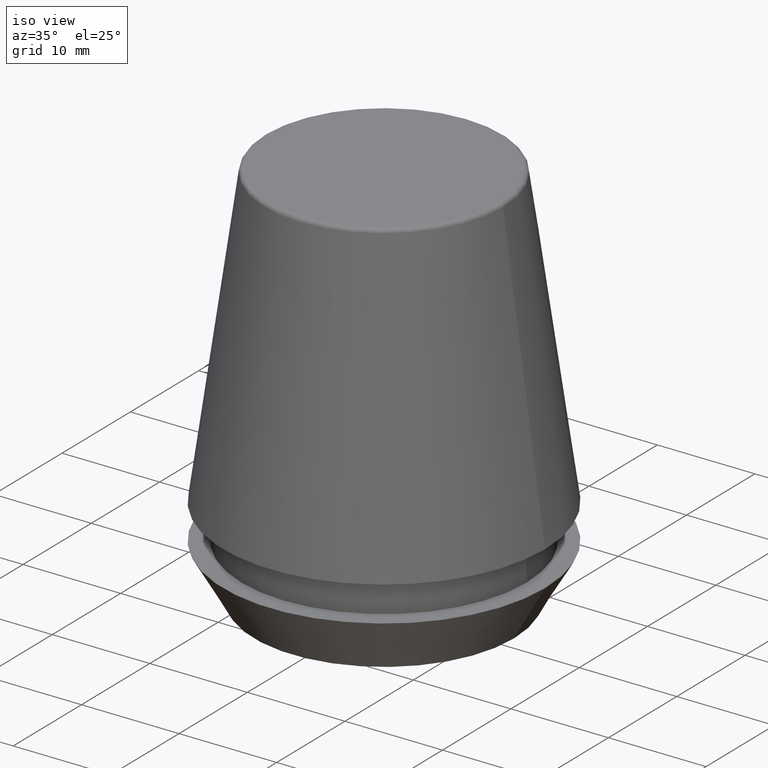
[diagram: clean part render]
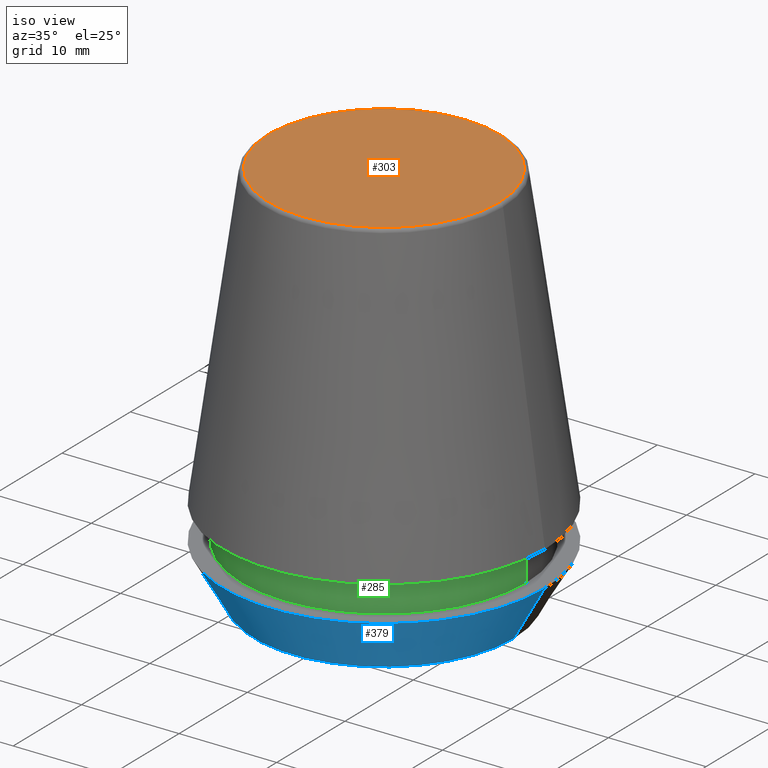
[diagram: same view with three faces highlighted in distinct colors, each labeled with its STEP entity id]
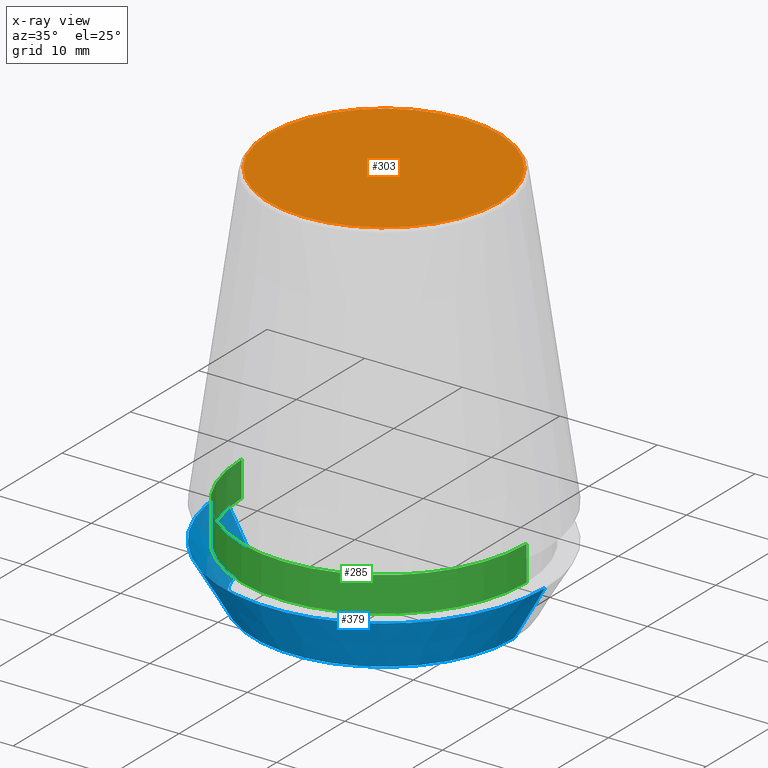
[diagram: x-ray of the same camera — body ghosted, the three highlighted faces saturated]
A machine part, iso view with three faces highlighted in distinct colors.
The next image is the same camera in x-ray (body ghosted, the three faces saturated) — at least one of them is partly hidden behind the body in this view.
Their STEP definitions:

[orange] entity #303 — the highlighted planar face has unit normal (0, 0, -1).
#13 = CIRCLE ( 'NONE', #72, 11.80989888411031400 ) ;
#16 = CIRCLE ( 'NONE', #240, 11.80989888411031400 ) ;
#36 = ORIENTED_EDGE ( 'NONE', *, *, #346, .T. ) ;
#68 = DIRECTION ( 'NONE',  ( 0.0000000000000000000, 0.0000000000000000000, -1.000000000000000000 ) ) ;
#72 = AXIS2_PLACEMENT_3D ( 'NONE', #165, #110, #94 ) ;
#87 = AXIS2_PLACEMENT_3D ( 'NONE', #135, #68, #121 ) ;
#90 = DIRECTION ( 'NONE',  ( 1.000000000000000000, 0.0000000000000000000, 0.0000000000000000000 ) ) ;
#94 = DIRECTION ( 'NONE',  ( 1.000000000000000000, 0.0000000000000000000, 0.0000000000000000000 ) ) ;
#110 = DIRECTION ( 'NONE',  ( -0.0000000000000000000, -0.0000000000000000000, 1.000000000000000000 ) ) ;
#117 = EDGE_LOOP ( 'NONE', ( #255, #36 ) ) ;
#121 = DIRECTION ( 'NONE',  ( -1.000000000000000000, 0.0000000000000000000, -0.0000000000000000000 ) ) ;
#133 = PLANE ( 'NONE',  #87 ) ;
#135 = CARTESIAN_POINT ( 'NONE',  ( 0.0000000000000000000, 11.80989888411031400, 40.00000000000000700 ) ) ;
#163 = DIRECTION ( 'NONE',  ( -0.0000000000000000000, -0.0000000000000000000, 1.000000000000000000 ) ) ;
#165 = CARTESIAN_POINT ( 'NONE',  ( 0.0000000000000000000, 0.0000000000000000000, 40.00000000000000700 ) ) ;
#166 = EDGE_CURVE ( 'NONE', #331, #382, #13, .T. ) ;
#195 = CARTESIAN_POINT ( 'NONE',  ( 0.0000000000000000000, 0.0000000000000000000, 40.00000000000000700 ) ) ;
#240 = AXIS2_PLACEMENT_3D ( 'NONE', #195, #163, #90 ) ;
#255 = ORIENTED_EDGE ( 'NONE', *, *, #166, .T. ) ;
#259 = CARTESIAN_POINT ( 'NONE',  ( 11.80989888411031400, 0.0000000000000000000, 40.00000000000000700 ) ) ;
#303 = ADVANCED_FACE ( 'NONE', ( #319 ), #133, .F. ) ;
#319 = FACE_OUTER_BOUND ( 'NONE', #117, .T. ) ;
#331 = VERTEX_POINT ( 'NONE', #259 ) ;
#342 = CARTESIAN_POINT ( 'NONE',  ( -11.80989888411031400, 1.470550059081603400E-015, 40.00000000000000700 ) ) ;
#346 = EDGE_CURVE ( 'NONE', #382, #331, #16, .T. ) ;
#382 = VERTEX_POINT ( 'NONE', #342 ) ;

[blue] entity #379 — the highlighted conical surface has half-angle 30 deg.
#18 = ORIENTED_EDGE ( 'NONE', *, *, #364, .F. ) ;
#30 = ORIENTED_EDGE ( 'NONE', *, *, #228, .T. ) ;
#60 = AXIS2_PLACEMENT_3D ( 'NONE', #214, #76, #164 ) ;
#76 = DIRECTION ( 'NONE',  ( -0.0000000000000000000, -0.0000000000000000000, 1.000000000000000000 ) ) ;
#80 = AXIS2_PLACEMENT_3D ( 'NONE', #82, #142, #356 ) ;
#82 = CARTESIAN_POINT ( 'NONE',  ( 0.0000000000000000000, 0.0000000000000000000, 0.0000000000000000000 ) ) ;
#86 = LINE ( 'NONE', #204, #237 ) ;
#93 = ORIENTED_EDGE ( 'NONE', *, *, #176, .F. ) ;
#101 = LINE ( 'NONE', #333, #369 ) ;
#109 = VERTEX_POINT ( 'NONE', #207 ) ;
#114 = AXIS2_PLACEMENT_3D ( 'NONE', #138, #361, #306 ) ;
#126 = EDGE_LOOP ( 'NONE', ( #18, #313, #30, #93 ) ) ;
#138 = CARTESIAN_POINT ( 'NONE',  ( 0.0000000000000000000, 0.0000000000000000000, 5.500000000000005300 ) ) ;
#142 = DIRECTION ( 'NONE',  ( -0.0000000000000000000, -0.0000000000000000000, 1.000000000000000000 ) ) ;
#162 = VERTEX_POINT ( 'NONE', #203 ) ;
#164 = DIRECTION ( 'NONE',  ( 1.000000000000000000, 0.0000000000000000000, 0.0000000000000000000 ) ) ;
#176 = EDGE_CURVE ( 'NONE', #162, #350, #290, .T. ) ;
#194 = VERTEX_POINT ( 'NONE', #335 ) ;
#197 = EDGE_CURVE ( 'NONE', #194, #109, #213, .T. ) ;
#203 = CARTESIAN_POINT ( 'NONE',  ( -16.50000000000000000, 2.020667218593133100E-015, 5.500000000000005300 ) ) ;
#204 = CARTESIAN_POINT ( 'NONE',  ( 13.32457351945710200, 0.0000000000000000000, 0.0000000000000000000 ) ) ;
#207 = CARTESIAN_POINT ( 'NONE',  ( 13.32457351945710200, 0.0000000000000000000, 0.0000000000000000000 ) ) ;
#213 = CIRCLE ( 'NONE', #80, 13.32457351945710200 ) ;
#214 = CARTESIAN_POINT ( 'NONE',  ( 0.0000000000000000000, 0.0000000000000000000, 0.0000000000000000000 ) ) ;
#228 = EDGE_CURVE ( 'NONE', #109, #350, #86, .T. ) ;
#237 = VECTOR ( 'NONE', #268, 999.9999999999998900 ) ;
#249 = CONICAL_SURFACE ( 'NONE', #60, 13.32457351945710200, 0.5235987755982927100 ) ;
#250 = CARTESIAN_POINT ( 'NONE',  ( 16.50000000000000000, 0.0000000000000000000, 5.500000000000005300 ) ) ;
#268 = DIRECTION ( 'NONE',  ( 0.4999999999999947300, 0.0000000000000000000, 0.8660254037844418200 ) ) ;
#290 = CIRCLE ( 'NONE', #114, 16.50000000000000000 ) ;
#306 = DIRECTION ( 'NONE',  ( 1.000000000000000000, 0.0000000000000000000, 0.0000000000000000000 ) ) ;
#311 = FACE_OUTER_BOUND ( 'NONE', #126, .T. ) ;
#313 = ORIENTED_EDGE ( 'NONE', *, *, #197, .T. ) ;
#333 = CARTESIAN_POINT ( 'NONE',  ( -13.32457351945710200, 1.631789631060672300E-015, 0.0000000000000000000 ) ) ;
#335 = CARTESIAN_POINT ( 'NONE',  ( -13.32457351945710200, 1.826228424826902600E-015, 0.0000000000000000000 ) ) ;
#350 = VERTEX_POINT ( 'NONE', #250 ) ;
#356 = DIRECTION ( 'NONE',  ( 1.000000000000000000, 0.0000000000000000000, 0.0000000000000000000 ) ) ;
#361 = DIRECTION ( 'NONE',  ( -0.0000000000000000000, -0.0000000000000000000, 1.000000000000000000 ) ) ;
#364 = EDGE_CURVE ( 'NONE', #194, #162, #101, .T. ) ;
#369 = VECTOR ( 'NONE', #371, 999.9999999999998900 ) ;
#371 = DIRECTION ( 'NONE',  ( -0.4999999999999947300, 6.123233995736700700E-017, 0.8660254037844418200 ) ) ;
#379 = ADVANCED_FACE ( 'NONE', ( #311 ), #249, .T. ) ;

[green] entity #285 — the highlighted cylindrical surface (partial cylindrical patch) has radius 14.6 mm, axis along (-0, -0, 1).
#1 = LINE ( 'NONE', #365, #180 ) ;
#3 = EDGE_CURVE ( 'NONE', #273, #267, #1, .T. ) ;
#14 = CARTESIAN_POINT ( 'NONE',  ( 0.0000000000000000000, 0.0000000000000000000, 101.8074564848000400 ) ) ;
#15 = EDGE_CURVE ( 'NONE', #267, #265, #103, .T. ) ;
#19 = DIRECTION ( 'NONE',  ( 1.000000000000000000, 0.0000000000000000000, 0.0000000000000000000 ) ) ;
#28 = DIRECTION ( 'NONE',  ( -0.0000000000000000000, -0.0000000000000000000, 1.000000000000000000 ) ) ;
#43 = CARTESIAN_POINT ( 'NONE',  ( 14.60000000000000000, 0.0000000000000000000, 101.8074564848000400 ) ) ;
#44 = ORIENTED_EDGE ( 'NONE', *, *, #15, .F. ) ;
#62 = EDGE_CURVE ( 'NONE', #143, #265, #151, .T. ) ;
#63 = VECTOR ( 'NONE', #292, 1000.000000000000000 ) ;
#67 = CARTESIAN_POINT ( 'NONE',  ( -14.60000000000000000, 1.787984326755135800E-015, 9.099999999999997900 ) ) ;
#98 = EDGE_CURVE ( 'NONE', #273, #143, #217, .T. ) ;
#103 = CIRCLE ( 'NONE', #184, 14.60000000000000000 ) ;
#119 = ORIENTED_EDGE ( 'NONE', *, *, #3, .F. ) ;
#140 = ORIENTED_EDGE ( 'NONE', *, *, #98, .T. ) ;
#143 = VERTEX_POINT ( 'NONE', #381 ) ;
#151 = LINE ( 'NONE', #43, #63 ) ;
#167 = CYLINDRICAL_SURFACE ( 'NONE', #293, 14.60000000000000000 ) ;
#177 = AXIS2_PLACEMENT_3D ( 'NONE', #281, #28, #181 ) ;
#180 = VECTOR ( 'NONE', #372, 1000.000000000000000 ) ;
#181 = DIRECTION ( 'NONE',  ( 1.000000000000000000, 0.0000000000000000000, 0.0000000000000000000 ) ) ;
#184 = AXIS2_PLACEMENT_3D ( 'NONE', #287, #383, #294 ) ;
#202 = CARTESIAN_POINT ( 'NONE',  ( 14.60000000000000000, 0.0000000000000000000, 9.099999999999997900 ) ) ;
#211 = ORIENTED_EDGE ( 'NONE', *, *, #62, .T. ) ;
#217 = CIRCLE ( 'NONE', #177, 14.60000000000000000 ) ;
#218 = DIRECTION ( 'NONE',  ( -0.0000000000000000000, -0.0000000000000000000, 1.000000000000000000 ) ) ;
#265 = VERTEX_POINT ( 'NONE', #202 ) ;
#267 = VERTEX_POINT ( 'NONE', #67 ) ;
#273 = VERTEX_POINT ( 'NONE', #323 ) ;
#276 = FACE_OUTER_BOUND ( 'NONE', #328, .T. ) ;
#281 = CARTESIAN_POINT ( 'NONE',  ( 0.0000000000000000000, 0.0000000000000000000, 5.500000000000005300 ) ) ;
#285 = ADVANCED_FACE ( 'NONE', ( #276 ), #167, .T. ) ;
#287 = CARTESIAN_POINT ( 'NONE',  ( 0.0000000000000000000, 0.0000000000000000000, 9.099999999999997900 ) ) ;
#292 = DIRECTION ( 'NONE',  ( -0.0000000000000000000, -0.0000000000000000000, 1.000000000000000000 ) ) ;
#293 = AXIS2_PLACEMENT_3D ( 'NONE', #14, #218, #19 ) ;
#294 = DIRECTION ( 'NONE',  ( 1.000000000000000000, 0.0000000000000000000, 0.0000000000000000000 ) ) ;
#323 = CARTESIAN_POINT ( 'NONE',  ( -14.60000000000000000, 1.787984326755135800E-015, 5.500000000000005300 ) ) ;
#328 = EDGE_LOOP ( 'NONE', ( #119, #140, #211, #44 ) ) ;
#365 = CARTESIAN_POINT ( 'NONE',  ( -14.60000000000000000, 1.787984326755135800E-015, 101.8074564848000400 ) ) ;
#372 = DIRECTION ( 'NONE',  ( -0.0000000000000000000, -0.0000000000000000000, 1.000000000000000000 ) ) ;
#381 = CARTESIAN_POINT ( 'NONE',  ( 14.60000000000000000, 0.0000000000000000000, 5.500000000000005300 ) ) ;
#383 = DIRECTION ( 'NONE',  ( -0.0000000000000000000, -0.0000000000000000000, 1.000000000000000000 ) ) ;